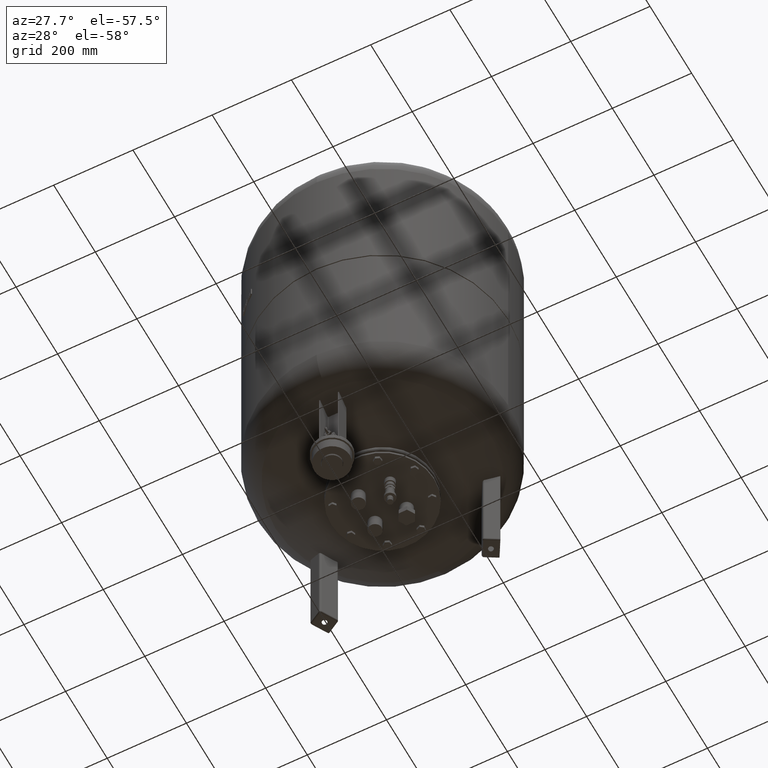
[diagram: clean part render]
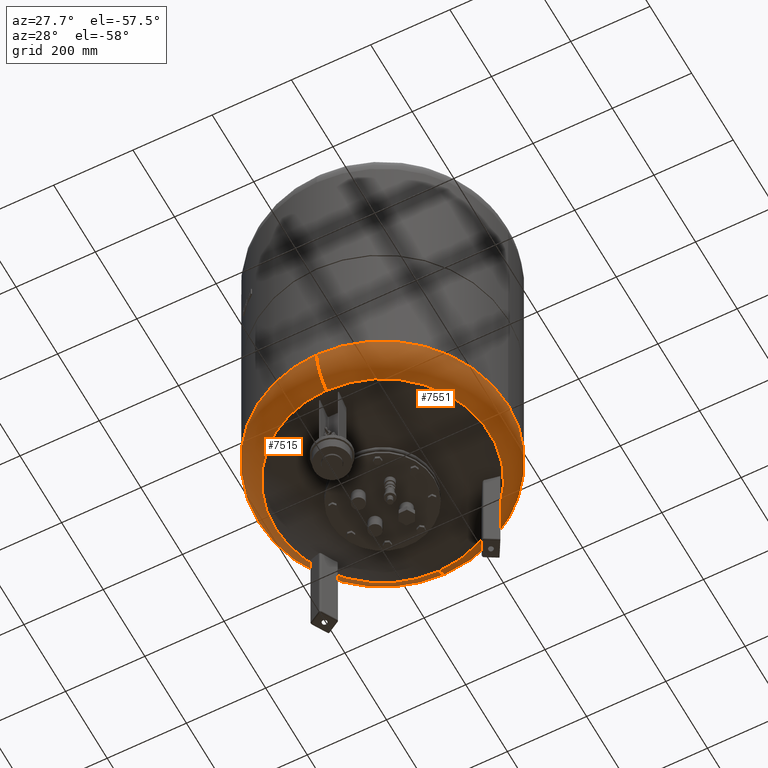
[diagram: same view with one multi-face feature highlighted, each face labeled with its STEP entity id]
A machine part, auxiliary view. The highlighted faces form ONE feature: a constant-radius fillet chain: 2 tangent blend faces with common blend radius 99 mm. The faces share edges in the B-rep.
Their STEP definitions:
[1] entity #7551 (Torus):
#7437=CARTESIAN_POINT('',(317.0,9.105293E-015,351.759449372628640));
#7438=VERTEX_POINT('',#7437);
#7445=CARTESIAN_POINT('',(-3.882002E-014,317.0,351.759449372628690));
#7446=VERTEX_POINT('',#7445);
#7447=CARTESIAN_POINT('',(-1.556097E-014,-2.971473E-014,351.759449372628640));
#7448=DIRECTION('',(0.0,0.0,1.0));
#7449=DIRECTION('',(-1.0,0.0,0.0));
#7450=AXIS2_PLACEMENT_3D('',#7447,#7448,#7449);
#7451=CIRCLE('',#7450,317.000000000000060);
#7452=EDGE_CURVE('',#7438,#7446,#7451,.T.);
#7469=CARTESIAN_POINT('',(-3.021869E-030,-317.000000000000110,351.759449372628580));
#7470=VERTEX_POINT('',#7469);
#7471=CARTESIAN_POINT('',(8.065826E-015,-270.639024390243830,267.913560318702370));
#7472=VERTEX_POINT('',#7471);
#7473=CARTESIAN_POINT('',(0.0,-218.000000000000030,351.759449372628580));
#7474=DIRECTION('',(1.0,0.0,0.0));
#7475=DIRECTION('',(0.0,-1.0,0.0));
#7476=AXIS2_PLACEMENT_3D('',#7473,#7474,#7475);
#7477=CIRCLE('',#7476,99.0);
#7478=EDGE_CURVE('',#7470,#7472,#7477,.T.);
#7488=CARTESIAN_POINT('',(-2.507680E-014,270.639024390243830,267.913560318702480));
#7489=VERTEX_POINT('',#7488);
#7490=CARTESIAN_POINT('',(-2.669642E-014,217.999999999999970,351.759449372628690));
#7491=DIRECTION('',(-1.0,0.0,0.0));
#7492=DIRECTION('',(0.0,1.0,0.0));
#7493=AXIS2_PLACEMENT_3D('',#7490,#7491,#7492);
#7494=CIRCLE('',#7493,99.0);
#7495=EDGE_CURVE('',#7446,#7489,#7494,.T.);
#7523=CARTESIAN_POINT('',(-7.495146E-015,-1.431249E-014,267.913560318702420));
#7524=DIRECTION('',(0.0,0.0,1.0));
#7525=DIRECTION('',(-1.0,0.0,0.0));
#7526=AXIS2_PLACEMENT_3D('',#7523,#7524,#7525);
#7527=CIRCLE('',#7526,270.639024390243830);
#7528=EDGE_CURVE('',#7472,#7489,#7527,.T.);
#7533=CARTESIAN_POINT('',(0.0,-2.971473E-014,351.759449372628640));
#7534=DIRECTION('',(-9.619823E-017,-1.836970E-016,1.0));
#7535=DIRECTION('',(0.0,-1.0,0.0));
#7536=AXIS2_PLACEMENT_3D('',#7533,#7534,#7535);
#7537=TOROIDAL_SURFACE('',#7536,218.0,99.0);
#7538=ORIENTED_EDGE('',*,*,#7478,.T.);
#7539=ORIENTED_EDGE('',*,*,#7528,.T.);
#7540=ORIENTED_EDGE('',*,*,#7495,.F.);
#7541=ORIENTED_EDGE('',*,*,#7452,.F.);
#7542=CARTESIAN_POINT('',(-1.556097E-014,-2.971473E-014,351.759449372628640));
#7543=DIRECTION('',(0.0,0.0,1.0));
#7544=DIRECTION('',(-1.0,0.0,0.0));
#7545=AXIS2_PLACEMENT_3D('',#7542,#7543,#7544);
#7546=CIRCLE('',#7545,317.000000000000060);
#7547=EDGE_CURVE('',#7470,#7438,#7546,.T.);
#7548=ORIENTED_EDGE('',*,*,#7547,.F.);
#7549=EDGE_LOOP('',(#7538,#7539,#7540,#7541,#7548));
#7550=FACE_OUTER_BOUND('',#7549,.T.);
#7551=ADVANCED_FACE('',(#7550),#7537,.T.);
[2] entity #7515 (Torus):
#7420=CARTESIAN_POINT('',(-317.000000000000060,-2.971473E-014,351.759449372628580));
#7421=VERTEX_POINT('',#7420);
#7445=CARTESIAN_POINT('',(-3.882002E-014,317.0,351.759449372628690));
#7446=VERTEX_POINT('',#7445);
#7454=CARTESIAN_POINT('',(-1.556097E-014,-2.971473E-014,351.759449372628640));
#7455=DIRECTION('',(0.0,0.0,1.0));
#7456=DIRECTION('',(-1.0,0.0,0.0));
#7457=AXIS2_PLACEMENT_3D('',#7454,#7455,#7456);
#7458=CIRCLE('',#7457,317.000000000000060);
#7459=EDGE_CURVE('',#7446,#7421,#7458,.T.);
#7464=CARTESIAN_POINT('',(0.0,-2.971473E-014,351.759449372628640));
#7465=DIRECTION('',(-9.619823E-017,-1.836970E-016,1.0));
#7466=DIRECTION('',(0.0,-1.0,0.0));
#7467=AXIS2_PLACEMENT_3D('',#7464,#7465,#7466);
#7468=TOROIDAL_SURFACE('',#7467,218.0,99.0);
#7469=CARTESIAN_POINT('',(-3.021869E-030,-317.000000000000110,351.759449372628580));
#7470=VERTEX_POINT('',#7469);
#7471=CARTESIAN_POINT('',(8.065826E-015,-270.639024390243830,267.913560318702370));
#7472=VERTEX_POINT('',#7471);
#7473=CARTESIAN_POINT('',(0.0,-218.000000000000030,351.759449372628580));
#7474=DIRECTION('',(1.0,0.0,0.0));
#7475=DIRECTION('',(0.0,-1.0,0.0));
#7476=AXIS2_PLACEMENT_3D('',#7473,#7474,#7475);
#7477=CIRCLE('',#7476,99.0);
#7478=EDGE_CURVE('',#7470,#7472,#7477,.T.);
#7479=ORIENTED_EDGE('',*,*,#7478,.F.);
#7480=CARTESIAN_POINT('',(-1.556097E-014,-2.971473E-014,351.759449372628640));
#7481=DIRECTION('',(0.0,0.0,1.0));
#7482=DIRECTION('',(-1.0,0.0,0.0));
#7483=AXIS2_PLACEMENT_3D('',#7480,#7481,#7482);
#7484=CIRCLE('',#7483,317.000000000000060);
#7485=EDGE_CURVE('',#7421,#7470,#7484,.T.);
#7486=ORIENTED_EDGE('',*,*,#7485,.F.);
#7487=ORIENTED_EDGE('',*,*,#7459,.F.);
#7488=CARTESIAN_POINT('',(-2.507680E-014,270.639024390243830,267.913560318702480));
#7489=VERTEX_POINT('',#7488);
#7490=CARTESIAN_POINT('',(-2.669642E-014,217.999999999999970,351.759449372628690));
#7491=DIRECTION('',(-1.0,0.0,0.0));
#7492=DIRECTION('',(0.0,1.0,0.0));
#7493=AXIS2_PLACEMENT_3D('',#7490,#7491,#7492);
#7494=CIRCLE('',#7493,99.0);
#7495=EDGE_CURVE('',#7446,#7489,#7494,.T.);
#7496=ORIENTED_EDGE('',*,*,#7495,.T.);
#7497=CARTESIAN_POINT('',(-270.639024390243830,-1.431249E-014,267.913560318702420));
#7498=VERTEX_POINT('',#7497);
#7499=CARTESIAN_POINT('',(-7.495146E-015,-1.431249E-014,267.913560318702420));
#7500=DIRECTION('',(0.0,0.0,1.0));
#7501=DIRECTION('',(-1.0,0.0,0.0));
#7502=AXIS2_PLACEMENT_3D('',#7499,#7500,#7501);
#7503=CIRCLE('',#7502,270.639024390243830);
#7504=EDGE_CURVE('',#7489,#7498,#7503,.T.);
#7505=ORIENTED_EDGE('',*,*,#7504,.T.);
#7506=CARTESIAN_POINT('',(-7.495146E-015,-1.431249E-014,267.913560318702420));
#7507=DIRECTION('',(0.0,0.0,1.0));
#7508=DIRECTION('',(-1.0,0.0,0.0));
#7509=AXIS2_PLACEMENT_3D('',#7506,#7507,#7508);
#7510=CIRCLE('',#7509,270.639024390243830);
#7511=EDGE_CURVE('',#7498,#7472,#7510,.T.);
#7512=ORIENTED_EDGE('',*,*,#7511,.T.);
#7513=EDGE_LOOP('',(#7479,#7486,#7487,#7496,#7505,#7512));
#7514=FACE_OUTER_BOUND('',#7513,.T.);
#7515=ADVANCED_FACE('',(#7514),#7468,.T.);